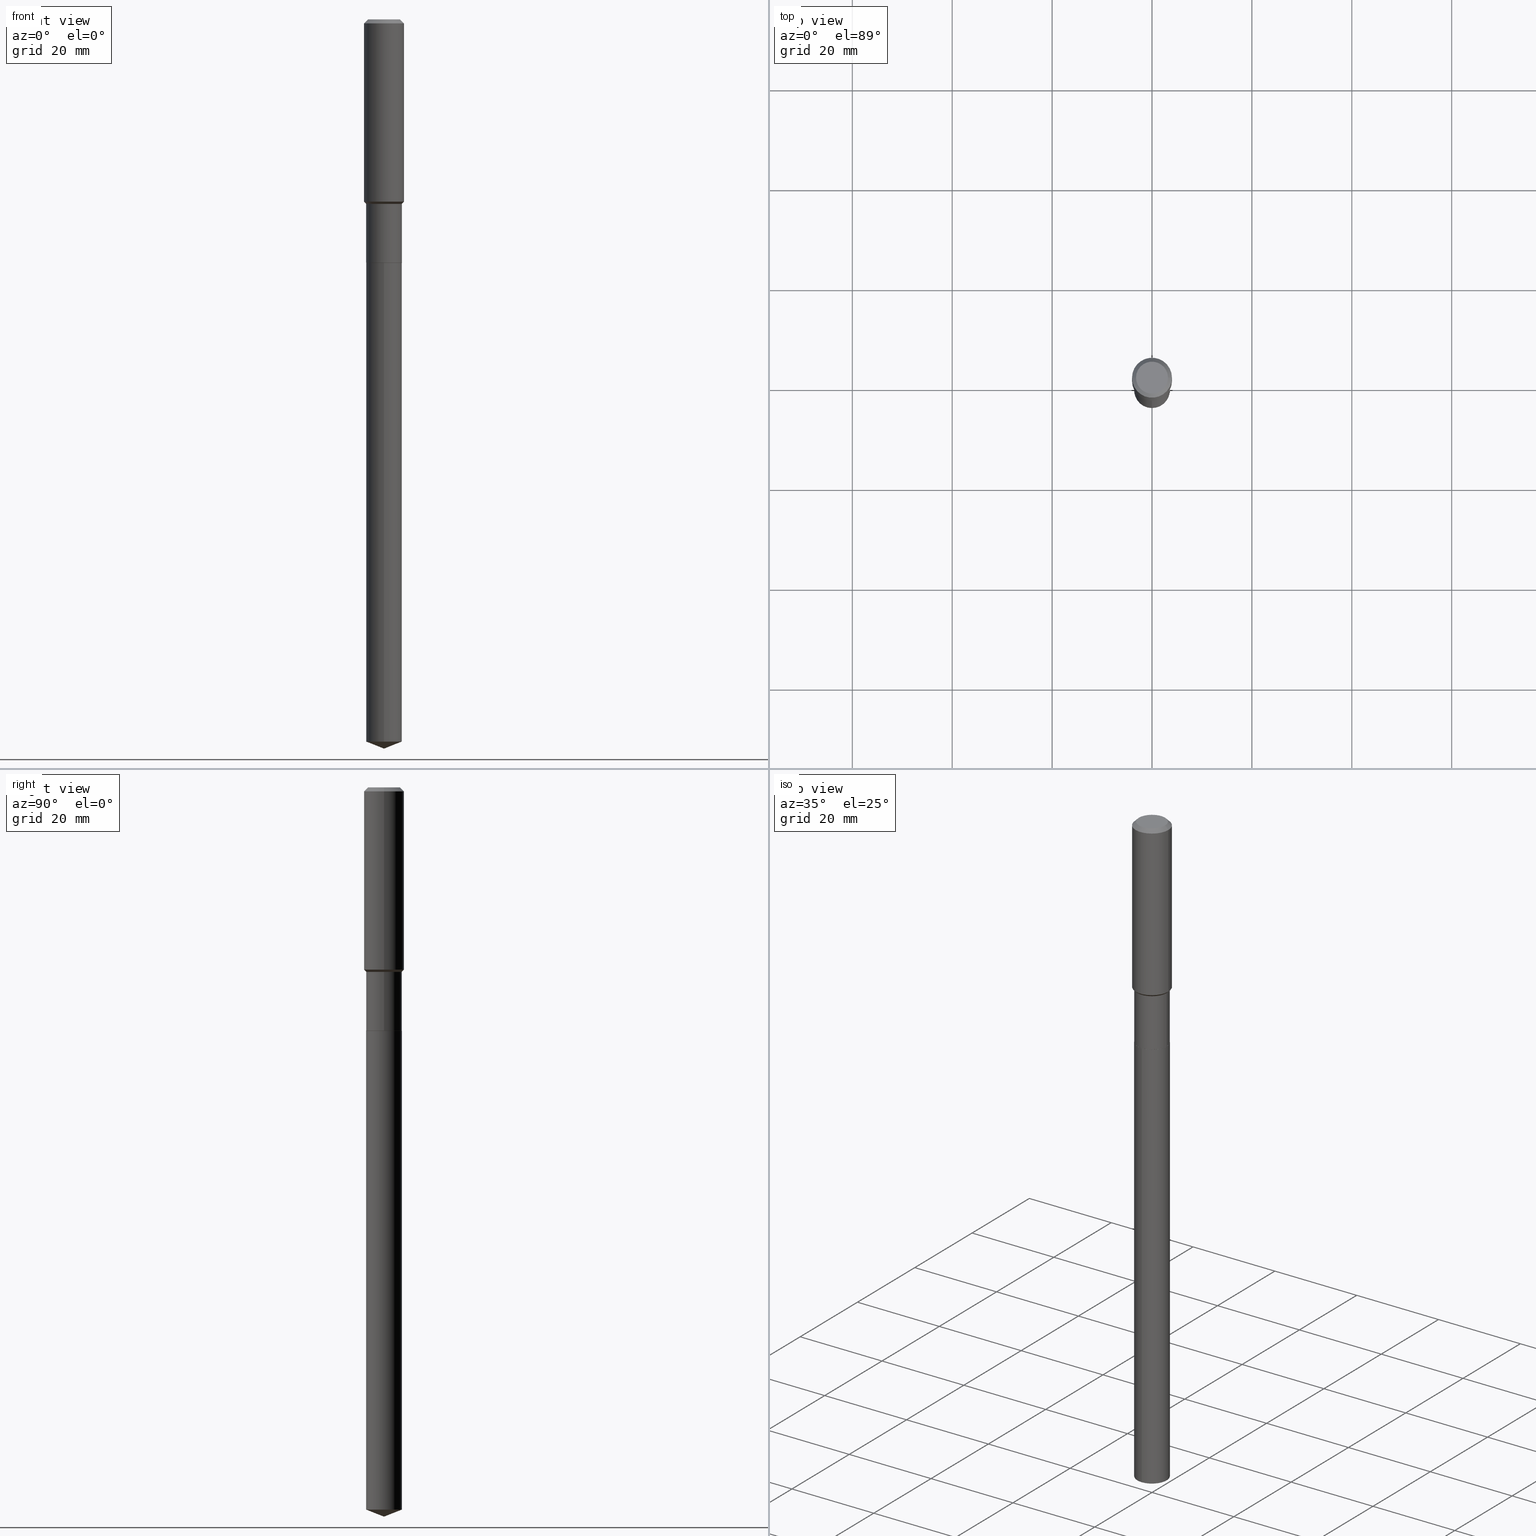
[diagram: canonical four-view strip — front | top / right | iso, engineering-drawing reading convention]
A machine part, canonical four-view strip (front | top / right | iso — engineering-drawing reading convention). The complete STEP part file that produces these views, byte-faithful:
ISO-10303-21;
HEADER;
FILE_DESCRIPTION (( 'STEP AP203' ),
    '1' );
FILE_NAME ('56521.STEP',
    '2024-04-24T18:18:09',
    ( '' ),
    ( '' ),
    'SwSTEP 2.0',
    'SolidWorks 2023',
    '' );
FILE_SCHEMA (( 'CONFIG_CONTROL_DESIGN' ));
ENDSEC;

DATA;
#1 = DATE_AND_TIME ( #347, #340 ) ;
#2 = APPLICATION_PROTOCOL_DEFINITION ( 'international standard', 'config_control_design', 1994, #264 ) ;
#3 = EDGE_CURVE ( 'NONE', #299, #362, #209, .T. ) ;
#4 = ORIENTED_EDGE ( 'NONE', *, *, #311, .F. ) ;
#5 = CC_DESIGN_APPROVAL ( #483, ( #331 ) ) ;
#6 = CALENDAR_DATE ( 2024, 24, 4 ) ;
#7 = DIRECTION ( 'NONE',  ( -2.445468806185136597E-29, 3.491481338843145583E-15, 1.000000000000000000 ) ) ;
#8 = ADVANCED_FACE ( 'NONE', ( #15 ), #143, .F. ) ;
#9 = PERSON_AND_ORGANIZATION ( #332, #256 ) ;
#10 = CARTESIAN_POINT ( 'NONE',  ( 0.1575000000000000011, -1.190510096822576026E-15, -0.03150000000000019451 ) ) ;
#11 = DIRECTION ( 'NONE',  ( -2.445468806185136877E-29, 3.491481338843145188E-15, 1.000000000000000000 ) ) ;
#12 = VECTOR ( 'NONE', #146, 39.37007874015748143 ) ;
#13 = CIRCLE ( 'NONE', #161, 0.1406000000000000028 ) ;
#14 = ADVANCED_FACE ( 'NONE', ( #287 ), #227, .T. ) ;
#15 = FACE_OUTER_BOUND ( 'NONE', #396, .T. ) ;
#16 = VERTEX_POINT ( 'NONE', #53 ) ;
#17 = ORIENTED_EDGE ( 'NONE', *, *, #50, .T. ) ;
#18 = AXIS2_PLACEMENT_3D ( 'NONE', #421, #7, #239 ) ;
#19 = ADVANCED_FACE ( 'NONE', ( #47 ), #241, .T. ) ;
#20 = ORIENTED_EDGE ( 'NONE', *, *, #34, .F. ) ;
#21 = VERTEX_POINT ( 'NONE', #49 ) ;
#22 = VERTEX_POINT ( 'NONE', #100 ) ;
#23 = DIRECTION ( 'NONE',  ( -2.445468806185136597E-29, 3.491481338843145583E-15, 1.000000000000000000 ) ) ;
#24 = CIRCLE ( 'NONE', #373, 0.1405999999999999472 ) ;
#25 = CIRCLE ( 'NONE', #109, 0.1575000000000001676 ) ;
#26 = ORIENTED_EDGE ( 'NONE', *, *, #259, .T. ) ;
#27 = DIRECTION ( 'NONE',  ( 1.000000000000000000, -6.982962677686268288E-15, 0.000000000000000000 ) ) ;
#28 = CYLINDRICAL_SURFACE ( 'NONE', #198, 0.1405999999999999750 ) ;
#29 = APPROVAL_DATE_TIME ( #423, #415 ) ;
#30 = AXIS2_PLACEMENT_3D ( 'NONE', #365, #465, #171 ) ;
#31 = CIRCLE ( 'NONE', #357, 0.1405999999999999472 ) ;
#32 = COORDINATED_UNIVERSAL_TIME_OFFSET ( 5, 0, .BEHIND. ) ;
#33 = CARTESIAN_POINT ( 'NONE',  ( -0.1401000000000000023, -5.698192459793258446E-15, -1.917900000000000382 ) ) ;
#34 = EDGE_CURVE ( 'NONE', #21, #16, #251, .T. ) ;
#35 = ORIENTED_EDGE ( 'NONE', *, *, #93, .F. ) ;
#36 = DIRECTION ( 'NONE',  ( -1.000000000000000000, 6.982962677686265922E-15, 0.000000000000000000 ) ) ;
#37 = CARTESIAN_POINT ( 'NONE',  ( 0.1406000000000000028, -7.676370871580536837E-15, -1.917400000000000437 ) ) ;
#38 = CYLINDRICAL_SURFACE ( 'NONE', #172, 0.1406000000000000028 ) ;
#39 = CIRCLE ( 'NONE', #210, 0.1406000000000000028 ) ;
#40 = LINE ( 'NONE', #10, #470 ) ;
#41 = AXIS2_PLACEMENT_3D ( 'NONE', #195, #119, #419 ) ;
#42 = APPROVAL_STATUS ( 'not_yet_approved' ) ;
#43 = CARTESIAN_POINT ( 'NONE',  ( 0.1575000000000000844, -1.099816621735587677E-15, 7.679978421878603638E-30 ) ) ;
#44 = MANIFOLD_SOLID_BREP ( 'Body-Move/Copy2[2]', #431 ) ;
#45 = DIRECTION ( 'NONE',  ( -6.982962677686265133E-15, -1.000000000000000000, 3.885985766236505386E-15 ) ) ;
#46 = LENGTH_MEASURE_WITH_UNIT ( LENGTH_MEASURE( 0.02539999999999999897 ), #89 );
#47 = FACE_OUTER_BOUND ( 'NONE', #68, .T. ) ;
#48 = CLOSED_SHELL ( 'NONE', ( #446, #19, #408, #393, #173 ) ) ;
#49 = CARTESIAN_POINT ( 'NONE',  ( 0.1575000000000001676, -6.116726157519304807E-15, -1.436900000000000288 ) ) ;
#50 = EDGE_CURVE ( 'NONE', #292, #362, #322, .T. ) ;
#51 = DIRECTION ( 'NONE',  ( 1.000000000000000000, -6.982962677686265922E-15, 4.876281427513067258E-29 ) ) ;
#52 = ORIENTED_EDGE ( 'NONE', *, *, #190, .T. ) ;
#53 = CARTESIAN_POINT ( 'NONE',  ( 0.1575000000000000011, -1.209798283909146741E-15, -0.03150000000000019451 ) ) ;
#54 = VERTEX_POINT ( 'NONE', #468 ) ;
#55 = VECTOR ( 'NONE', #103, 39.37007874015748143 ) ;
#56 = CARTESIAN_POINT ( 'NONE',  ( 7.703226739483228723E-31, -1.099816621735597661E-16, -0.03150000000000019451 ) ) ;
#57 = VECTOR ( 'NONE', #294, 39.37007874015748143 ) ;
#58 = CC_DESIGN_DATE_AND_TIME_ASSIGNMENT ( #80, #203, ( #175 ) ) ;
#59 = DIRECTION ( 'NONE',  ( -0.7071067811865514585, 7.493145998870368360E-15, 0.7071067811865435759 ) ) ;
#60 = EDGE_LOOP ( 'NONE', ( #176, #291, #215, #473 ) ) ;
#61 = DIMENSIONAL_EXPONENTS ( 1.000000000000000000, 0.000000000000000000, 0.000000000000000000, 0.000000000000000000, 0.000000000000000000, 0.000000000000000000, 0.000000000000000000 ) ;
#62 = LINE ( 'NONE', #413, #305 ) ;
#63 = DIRECTION ( 'NONE',  ( 1.000000000000000000, -6.982962677686266711E-15, 4.876176775795935232E-29 ) ) ;
#64 = ORIENTED_EDGE ( 'NONE', *, *, #50, .F. ) ;
#65 = AXIS2_PLACEMENT_3D ( 'NONE', #355, #170, #328 ) ;
#66 = CIRCLE ( 'NONE', #281, 0.1575000000000000011 ) ;
#67 = DIRECTION ( 'NONE',  ( 1.000000000000000000, -6.982962677686268288E-15, 0.000000000000000000 ) ) ;
#68 = EDGE_LOOP ( 'NONE', ( #374, #138, #219 ) ) ;
#69 = DIRECTION ( 'NONE',  ( 0.7071067811865514585, -2.468850131082298081E-15, 0.7071067811865435759 ) ) ;
#70 = DIRECTION ( 'NONE',  ( -2.445468806185136877E-29, 3.491481338843145188E-15, 1.000000000000000000 ) ) ;
#71 = APPROVAL_STATUS ( 'not_yet_approved' ) ;
#72 = AXIS2_PLACEMENT_3D ( 'NONE', #391, #435, #395 ) ;
#73 =( GEOMETRIC_REPRESENTATION_CONTEXT ( 3 ) GLOBAL_UNCERTAINTY_ASSIGNED_CONTEXT ( ( #428 ) ) GLOBAL_UNIT_ASSIGNED_CONTEXT ( ( #467, #128, #83 ) ) REPRESENTATION_CONTEXT ( 'NONE', 'WORKASPACE' ) );
#74 = CARTESIAN_POINT ( 'NONE',  ( -0.1575000000000000011, -1.444340790156479606E-15, -0.03150000000000019451 ) ) ;
#75 = EDGE_CURVE ( 'NONE', #22, #292, #136, .T. ) ;
#76 = PERSON_AND_ORGANIZATION_ROLE ( 'classification_officer' ) ;
#77 = CARTESIAN_POINT ( 'NONE',  ( 1.405709977791097434E-28, -2.006825415014536211E-14, -5.748000000000000220 ) ) ;
#78 = VERTEX_POINT ( 'NONE', #484 ) ;
#79 = ADVANCED_FACE ( 'NONE', ( #402 ), #258, .F. ) ;
#80 = DATE_AND_TIME ( #121, #212 ) ;
#81 = ORIENTED_EDGE ( 'NONE', *, *, #190, .F. ) ;
#82 = ADVANCED_BREP_SHAPE_REPRESENTATION ( '56521', ( #380, #44, #206 ), #73 ) ;
#83 =( NAMED_UNIT ( * ) SI_UNIT ( $, .STERADIAN. ) SOLID_ANGLE_UNIT ( ) );
#84 = VECTOR ( 'NONE', #405, 39.37007874015748854 ) ;
#85 = COORDINATED_UNIVERSAL_TIME_OFFSET ( 5, 0, .BEHIND. ) ;
#86 = CYLINDRICAL_SURFACE ( 'NONE', #454, 0.1406000000000000028 ) ;
#87 = DIRECTION ( 'NONE',  ( 0.7071067811865451302, -7.319954787623248157E-15, -0.7071067811865499042 ) ) ;
#88 = CARTESIAN_POINT ( 'NONE',  ( 4.690164623382474764E-29, -6.696312059767270024E-15, -1.917900000000000382 ) ) ;
#89 =( LENGTH_UNIT ( ) NAMED_UNIT ( * ) SI_UNIT ( $, .METRE. ) );
#90 = CARTESIAN_POINT ( 'NONE',  ( 4.690164623382474764E-29, -6.696312059767270024E-15, -1.917900000000000382 ) ) ;
#91 = VECTOR ( 'NONE', #11, 39.37007874015748143 ) ;
#92 = AXIS2_PLACEMENT_3D ( 'NONE', #274, #236, #191 ) ;
#93 = EDGE_CURVE ( 'NONE', #196, #21, #62, .T. ) ;
#94 = DIRECTION ( 'NONE',  ( 1.000000000000000000, -6.982962677686266711E-15, 4.876176775795935232E-29 ) ) ;
#95 = ORIENTED_EDGE ( 'NONE', *, *, #133, .F. ) ;
#96 = DIRECTION ( 'NONE',  ( -2.445563635683885616E-29, 3.491345537603577277E-15, 1.000000000000000000 ) ) ;
#97 = ORIENTED_EDGE ( 'NONE', *, *, #218, .T. ) ;
#98 = LINE ( 'NONE', #399, #280 ) ;
#99 = FACE_OUTER_BOUND ( 'NONE', #316, .T. ) ;
#100 = CARTESIAN_POINT ( 'NONE',  ( 9.990230864788403121E-16, 0.1405999999999801575, -5.692616187128541227 ) ) ;
#101 = ORIENTED_EDGE ( 'NONE', *, *, #75, .F. ) ;
#102 = LOCAL_TIME ( 14, 18, 9.000000000000000000, #279 ) ;
#103 = DIRECTION ( 'NONE',  ( -0.7071067811865451302, 2.468850131082231817E-15, -0.7071067811865499042 ) ) ;
#104 = CARTESIAN_POINT ( 'NONE',  ( -9.818045524826419714E-16, -0.1406000000000066918, -1.917899999999999716 ) ) ;
#105 = CARTESIAN_POINT ( 'NONE',  ( 3.555222550431952011E-29, -5.075915570410165725E-15, -1.453800000000000203 ) ) ;
#106 = EDGE_LOOP ( 'NONE', ( #436, #17 ) ) ;
#107 = CARTESIAN_POINT ( 'NONE',  ( -0.1406000000000000028, -4.886217858275305847E-15, -1.917400000000000437 ) ) ;
#108 = AXIS2_PLACEMENT_3D ( 'NONE', #90, #139, #430 ) ;
#109 = AXIS2_PLACEMENT_3D ( 'NONE', #372, #300, #262 ) ;
#110 = DIRECTION ( 'NONE',  ( -1.000000000000000000, 6.982962677686265922E-15, -4.876176775795935793E-29 ) ) ;
#111 = ADVANCED_FACE ( 'NONE', ( #485 ), #28, .T. ) ;
#112 = DATE_AND_TIME ( #6, #102 ) ;
#113 = DIRECTION ( 'NONE',  ( 1.000000000000000000, -6.982962677686265133E-15, 0.000000000000000000 ) ) ;
#114 = CARTESIAN_POINT ( 'NONE',  ( -0.1401000000000000023, -5.700841686967369647E-15, -1.917900000000000382 ) ) ;
#115 = DIRECTION ( 'NONE',  ( 1.000000000000000000, -6.982962677686265922E-15, 0.000000000000000000 ) ) ;
#116 = SECURITY_CLASSIFICATION_LEVEL ( 'unclassified' ) ;
#117 = AXIS2_PLACEMENT_3D ( 'NONE', #392, #290, #130 ) ;
#118 = VECTOR ( 'NONE', #231, 39.37007874015748143 ) ;
#119 = DIRECTION ( 'NONE',  ( -2.445563635683885616E-29, 3.491345537603577277E-15, 1.000000000000000000 ) ) ;
#120 = ORIENTED_EDGE ( 'NONE', *, *, #153, .F. ) ;
#121 = CALENDAR_DATE ( 2024, 24, 4 ) ;
#122 = DIRECTION ( 'NONE',  ( -2.445468806185136597E-29, 3.491481338843145583E-15, 1.000000000000000000 ) ) ;
#123 = COORDINATED_UNIVERSAL_TIME_OFFSET ( 5, 0, .BEHIND. ) ;
#124 = EDGE_CURVE ( 'NONE', #211, #476, #339, .T. ) ;
#125 = CYLINDRICAL_SURFACE ( 'NONE', #471, 0.1575000000000000844 ) ;
#126 = DIRECTION ( 'NONE',  ( -2.445468806185136597E-29, 3.491481338843145583E-15, 1.000000000000000000 ) ) ;
#127 = APPLICATION_CONTEXT ( 'configuration controlled 3d designs of mechanical parts and assemblies' ) ;
#128 =( NAMED_UNIT ( * ) PLANE_ANGLE_UNIT ( ) SI_UNIT ( $, .RADIAN. ) );
#129 = CIRCLE ( 'NONE', #463, 0.1401000000000000023 ) ;
#130 = DIRECTION ( 'NONE',  ( 1.000000000000000000, -6.982962677686265922E-15, 4.876281427513067258E-29 ) ) ;
#131 = PRODUCT_DEFINITION ( 'UNKNOWN', '', #331, #202 ) ;
#132 = CARTESIAN_POINT ( 'NONE',  ( 3.555222550431952011E-29, -5.075915570410165725E-15, -1.453800000000000203 ) ) ;
#133 = EDGE_CURVE ( 'NONE', #411, #22, #443, .T. ) ;
#134 = ORIENTED_EDGE ( 'NONE', *, *, #329, .F. ) ;
#135 = CYLINDRICAL_SURFACE ( 'NONE', #314, 0.1405999999999999750 ) ;
#136 = LINE ( 'NONE', #223, #12 ) ;
#137 = DIRECTION ( 'NONE',  ( 2.445468806185136597E-29, -3.491481338843145583E-15, -1.000000000000000000 ) ) ;
#138 = ORIENTED_EDGE ( 'NONE', *, *, #133, .T. ) ;
#139 = DIRECTION ( 'NONE',  ( -2.438088387897960049E-29, 3.491481338843145188E-15, 1.000000000000000000 ) ) ;
#140 = CC_DESIGN_PERSON_AND_ORGANIZATION_ASSIGNMENT ( #379, #456, ( #331 ) ) ;
#141 = ORIENTED_EDGE ( 'NONE', *, *, #286, .T. ) ;
#142 = ORIENTED_EDGE ( 'NONE', *, *, #34, .T. ) ;
#143 = PLANE ( 'NONE',  #108 ) ;
#144 = ORIENTED_EDGE ( 'NONE', *, *, #412, .T. ) ;
#145 = CARTESIAN_POINT ( 'NONE',  ( 1.405673603091967270E-28, -2.006877505654009668E-14, -5.748000000000000220 ) ) ;
#146 = DIRECTION ( 'NONE',  ( -2.445563635683885616E-29, 3.491345537603577277E-15, 1.000000000000000000 ) ) ;
#147 = EDGE_LOOP ( 'NONE', ( #367, #144 ) ) ;
#148 = AXIS2_PLACEMENT_3D ( 'NONE', #325, #462, #353 ) ;
#149 = AXIS2_PLACEMENT_3D ( 'NONE', #162, #122, #158 ) ;
#150 = CARTESIAN_POINT ( 'NONE',  ( -0.1575000000000000844, 1.119104808822158392E-15, -7.747322767151481189E-30 ) ) ;
#151 = DIRECTION ( 'NONE',  ( -2.445468806185136597E-29, 3.491481338843145583E-15, 1.000000000000000000 ) ) ;
#152 = FACE_OUTER_BOUND ( 'NONE', #469, .T. ) ;
#153 = EDGE_CURVE ( 'NONE', #22, #299, #400, .T. ) ;
#154 = CIRCLE ( 'NONE', #117, 0.1260000000000000009 ) ;
#155 = CC_DESIGN_PERSON_AND_ORGANIZATION_ASSIGNMENT ( #160, #313, ( #331 ) ) ;
#156 = LINE ( 'NONE', #114, #118 ) ;
#157 = DIRECTION ( 'NONE',  ( -2.445468806185136597E-29, 3.491481338843145583E-15, 1.000000000000000000 ) ) ;
#158 = DIRECTION ( 'NONE',  ( 1.000000000000000000, -6.982962677686269077E-15, 0.000000000000000000 ) ) ;
#159 = EDGE_LOOP ( 'NONE', ( #252, #288, #4, #220 ) ) ;
#160 = PERSON_AND_ORGANIZATION ( #332, #256 ) ;
#161 = AXIS2_PLACEMENT_3D ( 'NONE', #189, #307, #113 ) ;
#162 = CARTESIAN_POINT ( 'NONE',  ( 4.690164623382474764E-29, -6.696312059767270024E-15, -1.917900000000000382 ) ) ;
#163 = ORIENTED_EDGE ( 'NONE', *, *, #124, .T. ) ;
#164 = PERSON_AND_ORGANIZATION ( #332, #256 ) ;
#165 = DIRECTION ( 'NONE',  ( -2.445563635683885616E-29, 3.491345537603577277E-15, 1.000000000000000000 ) ) ;
#166 = CARTESIAN_POINT ( 'NONE',  ( 1.392147326565136221E-28, -1.987515057541849014E-14, -5.692616187128541227 ) ) ;
#167 = EDGE_CURVE ( 'NONE', #54, #16, #40, .T. ) ;
#168 = AXIS2_PLACEMENT_3D ( 'NONE', #343, #410, #487 ) ;
#169 = CARTESIAN_POINT ( 'NONE',  ( 0.000000000000000000, 0.000000000000000000, 0.000000000000000000 ) ) ;
#170 = DIRECTION ( 'NONE',  ( -2.445563635683885616E-29, 3.491345537603577277E-15, 1.000000000000000000 ) ) ;
#171 = DIRECTION ( 'NONE',  ( -6.982962677686265133E-15, -1.000000000000000000, 0.000000000000000000 ) ) ;
#172 = AXIS2_PLACEMENT_3D ( 'NONE', #489, #165, #318 ) ;
#173 = ADVANCED_FACE ( 'NONE', ( #201 ), #321, .F. ) ;
#174 = EDGE_CURVE ( 'NONE', #338, #54, #154, .T. ) ;
#175 = SECURITY_CLASSIFICATION ( '', '', #116 ) ;
#176 = ORIENTED_EDGE ( 'NONE', *, *, #200, .F. ) ;
#177 = ORIENTED_EDGE ( 'NONE', *, *, #167, .T. ) ;
#178 = CARTESIAN_POINT ( 'NONE',  ( 0.1405999999999999750, -9.818045524826889086E-16, 6.855904546769083471E-30 ) ) ;
#179 = EDGE_LOOP ( 'NONE', ( #337, #330, #453, #261 ) ) ;
#180 = EDGE_LOOP ( 'NONE', ( #254, #441, #142, #406 ) ) ;
#181 = AXIS2_PLACEMENT_3D ( 'NONE', #263, #376, #378 ) ;
#182 = EDGE_CURVE ( 'NONE', #479, #312, #438, .T. ) ;
#183 = EDGE_LOOP ( 'NONE', ( #26, #141, #403, #444 ) ) ;
#184 = EDGE_CURVE ( 'NONE', #299, #22, #39, .T. ) ;
#185 = DIRECTION ( 'NONE',  ( 1.000000000000000000, -6.982962677686267499E-15, 0.000000000000000000 ) ) ;
#186 = CC_DESIGN_PERSON_AND_ORGANIZATION_ASSIGNMENT ( #237, #187, ( #131 ) ) ;
#187 = PERSON_AND_ORGANIZATION_ROLE ( 'creator' ) ;
#188 = CIRCLE ( 'NONE', #296, 0.1575000000000001676 ) ;
#189 = CARTESIAN_POINT ( 'NONE',  ( 4.688941888979381963E-29, -6.694566319097848520E-15, -1.917400000000000437 ) ) ;
#190 = EDGE_CURVE ( 'NONE', #196, #78, #24, .T. ) ;
#191 = DIRECTION ( 'NONE',  ( -6.982962677686265133E-15, -1.000000000000000000, 3.885985766236505386E-15 ) ) ;
#192 = ORIENTED_EDGE ( 'NONE', *, *, #174, .F. ) ;
#193 = CARTESIAN_POINT ( 'NONE',  ( 7.703226739483228723E-31, -1.099816621735597661E-16, -0.03150000000000019451 ) ) ;
#194 = CARTESIAN_POINT ( 'NONE',  ( 0.000000000000000000, 0.000000000000000000, 0.000000000000000000 ) ) ;
#195 = CARTESIAN_POINT ( 'NONE',  ( -8.222511499652505250E-28, 1.173860341212075691E-13, 33.62207874015748388 ) ) ;
#196 = VERTEX_POINT ( 'NONE', #358 ) ;
#197 = MECHANICAL_CONTEXT ( 'NONE', #264, 'mechanical' ) ;
#198 = AXIS2_PLACEMENT_3D ( 'NONE', #371, #23, #63 ) ;
#199 = CIRCLE ( 'NONE', #168, 0.1401000000000000023 ) ;
#200 = EDGE_CURVE ( 'NONE', #78, #211, #98, .T. ) ;
#201 = FACE_OUTER_BOUND ( 'NONE', #106, .T. ) ;
#202 = DESIGN_CONTEXT ( 'detailed design', #127, 'design' ) ;
#203 = DATE_TIME_ROLE ( 'classification_date' ) ;
#204 = EDGE_CURVE ( 'NONE', #338, #476, #368, .T. ) ;
#205 = PRODUCT_RELATED_PRODUCT_CATEGORY ( 'detail', '', ( #310 ) ) ;
#206 = AXIS2_PLACEMENT_3D ( 'NONE', #194, #349, #270 ) ;
#207 = CARTESIAN_POINT ( 'NONE',  ( 0.1401000000000000023, -7.674625130911116123E-15, -1.917900000000000382 ) ) ;
#208 = ORIENTED_EDGE ( 'NONE', *, *, #412, .F. ) ;
#209 = LINE ( 'NONE', #466, #409 ) ;
#210 = AXIS2_PLACEMENT_3D ( 'NONE', #166, #319, #242 ) ;
#211 = VERTEX_POINT ( 'NONE', #439 ) ;
#212 = LOCAL_TIME ( 14, 18, 9.000000000000000000, #85 ) ;
#213 = CARTESIAN_POINT ( 'NONE',  ( -0.1260000000000000009, 9.348441284752484904E-16, 3.860086710906114178E-18 ) ) ;
#214 = CARTESIAN_POINT ( 'NONE',  ( 7.703226739483228723E-31, -1.099816621735597661E-16, -0.03150000000000019451 ) ) ;
#215 = ORIENTED_EDGE ( 'NONE', *, *, #93, .T. ) ;
#216 = ORIENTED_EDGE ( 'NONE', *, *, #167, .F. ) ;
#217 = CARTESIAN_POINT ( 'NONE',  ( 3.513894127607423393E-29, -5.016909535783716538E-15, -1.436900000000000288 ) ) ;
#218 = EDGE_CURVE ( 'NONE', #411, #299, #478, .T. ) ;
#219 = ORIENTED_EDGE ( 'NONE', *, *, #184, .F. ) ;
#220 = ORIENTED_EDGE ( 'NONE', *, *, #3, .F. ) ;
#221 = LOCAL_TIME ( 14, 18, 9.000000000000000000, #309 ) ;
#222 = EDGE_CURVE ( 'NONE', #301, #479, #129, .T. ) ;
#223 = CARTESIAN_POINT ( 'NONE',  ( 9.990230864787476209E-16, 0.1405999999999933137, -1.917900000000000826 ) ) ;
#224 = DIRECTION ( 'NONE',  ( -2.445468806185136597E-29, 3.491481338843145583E-15, 1.000000000000000000 ) ) ;
#225 = ORIENTED_EDGE ( 'NONE', *, *, #243, .F. ) ;
#226 = DIRECTION ( 'NONE',  ( -2.445468806185136597E-29, 3.491481338843145583E-15, 1.000000000000000000 ) ) ;
#227 = CONICAL_SURFACE ( 'NONE', #72, 0.1405999999999999472, 0.7853981633974538301 ) ;
#228 = APPROVAL_ROLE ( '' ) ;
#229 = CONICAL_SURFACE ( 'NONE', #41, 99.94676754584200751, 1.195550537616126396 ) ;
#230 = PRODUCT_DEFINITION_SHAPE ( 'NONE', 'NONE',  #131 ) ;
#231 = DIRECTION ( 'NONE',  ( -0.7071067811866199593, 7.493145998870616062E-15, 0.7071067811864750752 ) ) ;
#232 = SHAPE_DEFINITION_REPRESENTATION ( #230, #82 ) ;
#233 = CARTESIAN_POINT ( 'NONE',  ( -9.439721640706201686E-47, 1.347742071746726764E-32, 3.860086710912459732E-18 ) ) ;
#234 = ORIENTED_EDGE ( 'NONE', *, *, #3, .T. ) ;
#235 = DIRECTION ( 'NONE',  ( -2.445468806185136597E-29, 3.491481338843145583E-15, 1.000000000000000000 ) ) ;
#236 = DIRECTION ( 'NONE',  ( -2.445563635683885616E-29, 3.491345537603577277E-15, 1.000000000000000000 ) ) ;
#237 = PERSON_AND_ORGANIZATION ( #332, #256 ) ;
#238 = EDGE_CURVE ( 'NONE', #326, #312, #418, .T. ) ;
#239 = DIRECTION ( 'NONE',  ( 1.000000000000000000, -6.982962677686269077E-15, 0.000000000000000000 ) ) ;
#240 = ORIENTED_EDGE ( 'NONE', *, *, #344, .F. ) ;
#241 = CONICAL_SURFACE ( 'NONE', #269, 99.94676754584200751, 1.195550537616126396 ) ;
#242 = DIRECTION ( 'NONE',  ( -6.982962677686265133E-15, -1.000000000000000000, 0.000000000000000000 ) ) ;
#243 = EDGE_CURVE ( 'NONE', #326, #78, #414, .T. ) ;
#244 = ADVANCED_FACE ( 'NONE', ( #152 ), #382, .T. ) ;
#245 = VECTOR ( 'NONE', #298, 39.37007874015748143 ) ;
#246 = AXIS2_PLACEMENT_3D ( 'NONE', #233, #364, #51 ) ;
#247 = ORIENTED_EDGE ( 'NONE', *, *, #243, .T. ) ;
#248 = ORIENTED_EDGE ( 'NONE', *, *, #344, .T. ) ;
#249 = ADVANCED_FACE ( 'NONE', ( #304 ), #448, .T. ) ;
#250 = DIRECTION ( 'NONE',  ( 0.7071067811866199593, -2.468850131083015945E-15, 0.7071067811864750752 ) ) ;
#251 = LINE ( 'NONE', #43, #91 ) ;
#252 = ORIENTED_EDGE ( 'NONE', *, *, #184, .T. ) ;
#253 = VECTOR ( 'NONE', #70, 39.37007874015748143 ) ;
#254 = ORIENTED_EDGE ( 'NONE', *, *, #124, .F. ) ;
#255 = EDGE_LOOP ( 'NONE', ( #225, #370, #277, #308 ) ) ;
#256 = ORGANIZATION ( 'UNSPECIFIED', 'UNSPECIFIED', '' ) ;
#257 = CC_DESIGN_PERSON_AND_ORGANIZATION_ASSIGNMENT ( #425, #76, ( #175 ) ) ;
#258 = PLANE ( 'NONE',  #451 ) ;
#259 = EDGE_CURVE ( 'NONE', #479, #301, #199, .T. ) ;
#260 = CARTESIAN_POINT ( 'NONE',  ( 1.405710296754271834E-28, -2.006825415014536211E-14, -5.748000000000000220 ) ) ;
#261 = ORIENTED_EDGE ( 'NONE', *, *, #238, .F. ) ;
#262 = DIRECTION ( 'NONE',  ( 1.000000000000000000, -6.982962677686267499E-15, 0.000000000000000000 ) ) ;
#263 = CARTESIAN_POINT ( 'NONE',  ( 0.000000000000000000, 0.000000000000000000, 0.000000000000000000 ) ) ;
#264 = APPLICATION_CONTEXT ( 'configuration controlled 3d designs of mechanical parts and assemblies' ) ;
#265 = AXIS2_PLACEMENT_3D ( 'NONE', #193, #157, #115 ) ;
#266 = FACE_OUTER_BOUND ( 'NONE', #422, .T. ) ;
#267 = CARTESIAN_POINT ( 'NONE',  ( -9.818045524825498719E-16, -0.1406000000000198757, -5.692616187128541227 ) ) ;
#268 = APPROVAL_ROLE ( '' ) ;
#269 = AXIS2_PLACEMENT_3D ( 'NONE', #284, #96, #474 ) ;
#270 = DIRECTION ( 'NONE',  ( 1.000000000000000000, 0.000000000000000000, 0.000000000000000000 ) ) ;
#271 = CC_DESIGN_APPROVAL ( #415, ( #175 ) ) ;
#272 = DIRECTION ( 'NONE',  ( -2.445563635683885616E-29, 3.491345537603577277E-15, 1.000000000000000000 ) ) ;
#273 = ADVANCED_FACE ( 'NONE', ( #266 ), #401, .T. ) ;
#274 = CARTESIAN_POINT ( 'NONE',  ( 4.690164623382474764E-29, -6.696312059767270024E-15, -1.917900000000000382 ) ) ;
#275 = PERSON_AND_ORGANIZATION ( #332, #256 ) ;
#276 = FACE_OUTER_BOUND ( 'NONE', #183, .T. ) ;
#277 = ORIENTED_EDGE ( 'NONE', *, *, #360, .T. ) ;
#278 = DATE_AND_TIME ( #460, #221 ) ;
#279 = COORDINATED_UNIVERSAL_TIME_OFFSET ( 5, 0, .BEHIND. ) ;
#280 = VECTOR ( 'NONE', #59, 39.37007874015748143 ) ;
#281 = AXIS2_PLACEMENT_3D ( 'NONE', #56, #442, #302 ) ;
#282 = APPROVAL_PERSON_ORGANIZATION ( #275, #415, #268 ) ;
#283 = CARTESIAN_POINT ( 'NONE',  ( 0.000000000000000000, 0.000000000000000000, 0.000000000000000000 ) ) ;
#284 = CARTESIAN_POINT ( 'NONE',  ( -8.222511499652505250E-28, 1.173860341212075691E-13, 33.62207874015748388 ) ) ;
#285 = ORIENTED_EDGE ( 'NONE', *, *, #153, .T. ) ;
#286 = EDGE_CURVE ( 'NONE', #301, #326, #156, .T. ) ;
#287 = FACE_OUTER_BOUND ( 'NONE', #60, .T. ) ;
#288 = ORIENTED_EDGE ( 'NONE', *, *, #75, .T. ) ;
#289 = EDGE_CURVE ( 'NONE', #476, #16, #449, .T. ) ;
#290 = DIRECTION ( 'NONE',  ( -2.445468806185136597E-29, 3.491481338843145583E-15, 1.000000000000000000 ) ) ;
#291 = ORIENTED_EDGE ( 'NONE', *, *, #363, .T. ) ;
#292 = VERTEX_POINT ( 'NONE', #385 ) ;
#293 = APPROVAL ( #42, 'UNSPECIFIED' ) ;
#294 = DIRECTION ( 'NONE',  ( -2.445468806185136877E-29, 3.491481338843145188E-15, 1.000000000000000000 ) ) ;
#295 = DIRECTION ( 'NONE',  ( -6.497071151882138769E-15, -0.9304175679820272382, 0.3665012267242906963 ) ) ;
#296 = AXIS2_PLACEMENT_3D ( 'NONE', #217, #151, #185 ) ;
#297 = ORIENTED_EDGE ( 'NONE', *, *, #329, .T. ) ;
#298 = DIRECTION ( 'NONE',  ( -2.445468806185136877E-29, 3.491481338843145188E-15, 1.000000000000000000 ) ) ;
#299 = VERTEX_POINT ( 'NONE', #267 ) ;
#300 = DIRECTION ( 'NONE',  ( -2.445468806185136597E-29, 3.491481338843145583E-15, 1.000000000000000000 ) ) ;
#301 = VERTEX_POINT ( 'NONE', #33 ) ;
#302 = DIRECTION ( 'NONE',  ( 1.000000000000000000, -6.982962677686265922E-15, 0.000000000000000000 ) ) ;
#303 = CARTESIAN_POINT ( 'NONE',  ( -4.719860820353100843E-47, 6.738710358733633822E-33, 1.930043355456229866E-18 ) ) ;
#304 = FACE_OUTER_BOUND ( 'NONE', #180, .T. ) ;
#305 = VECTOR ( 'NONE', #69, 39.37007874015748143 ) ;
#306 = DIRECTION ( 'NONE',  ( 1.000000000000000000, -6.982962677686269077E-15, 0.000000000000000000 ) ) ;
#307 = DIRECTION ( 'NONE',  ( -2.445468806185136597E-29, 3.491481338843145583E-15, 1.000000000000000000 ) ) ;
#308 = ORIENTED_EDGE ( 'NONE', *, *, #363, .F. ) ;
#309 = COORDINATED_UNIVERSAL_TIME_OFFSET ( 5, 0, .BEHIND. ) ;
#310 = PRODUCT ( '56521', '56521', '', ( #197 ) ) ;
#311 = EDGE_CURVE ( 'NONE', #362, #292, #346, .T. ) ;
#312 = VERTEX_POINT ( 'NONE', #37 ) ;
#313 = PERSON_AND_ORGANIZATION_ROLE ( 'design_supplier' ) ;
#314 = AXIS2_PLACEMENT_3D ( 'NONE', #283, #433, #94 ) ;
#315 = FACE_OUTER_BOUND ( 'NONE', #179, .T. ) ;
#316 = EDGE_LOOP ( 'NONE', ( #216, #192, #475, #350 ) ) ;
#317 = APPROVAL_DATE_TIME ( #278, #483 ) ;
#318 = DIRECTION ( 'NONE',  ( -6.982962677686265133E-15, -1.000000000000000000, 3.885985766236505386E-15 ) ) ;
#319 = DIRECTION ( 'NONE',  ( -2.445563635683885616E-29, 3.491345537603577277E-15, 1.000000000000000000 ) ) ;
#320 = DATE_TIME_ROLE ( 'creation_date' ) ;
#321 = PLANE ( 'NONE',  #148 ) ;
#322 = CIRCLE ( 'NONE', #65, 0.1406000000000000028 ) ;
#323 = APPROVAL_PERSON_ORGANIZATION ( #389, #293, #416 ) ;
#324 = DIRECTION ( 'NONE',  ( 1.000000000000000000, -6.982962677686267499E-15, 4.876176775795936353E-29 ) ) ;
#325 = CARTESIAN_POINT ( 'NONE',  ( 4.690164623382474764E-29, -6.696312059767270024E-15, -1.917900000000000382 ) ) ;
#326 = VERTEX_POINT ( 'NONE', #107 ) ;
#327 = DIRECTION ( 'NONE',  ( -1.000000000000000000, 6.982962677686265922E-15, 0.000000000000000000 ) ) ;
#328 = DIRECTION ( 'NONE',  ( -6.982962677686265133E-15, -1.000000000000000000, 3.885985766236505386E-15 ) ) ;
#329 = EDGE_CURVE ( 'NONE', #21, #211, #188, .T. ) ;
#330 = ORIENTED_EDGE ( 'NONE', *, *, #222, .T. ) ;
#331 = PRODUCT_DEFINITION_FORMATION_WITH_SPECIFIED_SOURCE ( 'ANY', '', #310, .NOT_KNOWN. ) ;
#332 = PERSON ( 'UNSPECIFIED', 'UNSPECIFIED', 'UNSPECIFIED', ('UNSPECIFIED'), ('UNSPECIFIED'), ('UNSPECIFIED') ) ;
#333 = CC_DESIGN_DATE_AND_TIME_ASSIGNMENT ( #1, #320, ( #131 ) ) ;
#334 = ORIENTED_EDGE ( 'NONE', *, *, #204, .F. ) ;
#335 = EDGE_LOOP ( 'NONE', ( #490, #247, #81, #398 ) ) ;
#336 = CARTESIAN_POINT ( 'NONE',  ( -0.1575000000000000011, 9.898349595620272334E-16, -0.03150000000000019451 ) ) ;
#337 = ORIENTED_EDGE ( 'NONE', *, *, #286, .F. ) ;
#338 = VERTEX_POINT ( 'NONE', #213 ) ;
#339 = LINE ( 'NONE', #150, #245 ) ;
#340 = LOCAL_TIME ( 14, 18, 9.000000000000000000, #32 ) ;
#341 = ORIENTED_EDGE ( 'NONE', *, *, #259, .F. ) ;
#342 = CARTESIAN_POINT ( 'NONE',  ( -0.1405999999999999750, 9.990230864787006837E-16, -6.916022736898396338E-30 ) ) ;
#343 = CARTESIAN_POINT ( 'NONE',  ( 4.690164623382474764E-29, -6.696312059767270024E-15, -1.917900000000000382 ) ) ;
#344 = EDGE_CURVE ( 'NONE', #16, #476, #66, .T. ) ;
#345 = VECTOR ( 'NONE', #295, 39.37007874015747433 ) ;
#346 = CIRCLE ( 'NONE', #92, 0.1406000000000000028 ) ;
#347 = CALENDAR_DATE ( 2024, 24, 4 ) ;
#348 = EDGE_CURVE ( 'NONE', #211, #21, #25, .T. ) ;
#349 = DIRECTION ( 'NONE',  ( 0.000000000000000000, 0.000000000000000000, 1.000000000000000000 ) ) ;
#350 = ORIENTED_EDGE ( 'NONE', *, *, #289, .T. ) ;
#351 = APPLICATION_PROTOCOL_DEFINITION ( 'international standard', 'config_control_design', 1994, #127 ) ;
#352 = CIRCLE ( 'NONE', #246, 0.1260000000000000009 ) ;
#353 = DIRECTION ( 'NONE',  ( 6.982962677686265922E-15, 1.000000000000000000, -3.491345537603577277E-15 ) ) ;
#354 = DIRECTION ( 'NONE',  ( -2.445468806185136597E-29, 3.491481338843145583E-15, 1.000000000000000000 ) ) ;
#355 = CARTESIAN_POINT ( 'NONE',  ( 4.690164623382474764E-29, -6.696312059767270024E-15, -1.917900000000000382 ) ) ;
#356 = CC_DESIGN_PERSON_AND_ORGANIZATION_ASSIGNMENT ( #164, #387, ( #310 ) ) ;
#357 = AXIS2_PLACEMENT_3D ( 'NONE', #407, #375, #27 ) ;
#358 = CARTESIAN_POINT ( 'NONE',  ( 0.1405999999999999472, -6.057720122892854042E-15, -1.453800000000000203 ) ) ;
#359 = CARTESIAN_POINT ( 'NONE',  ( 4.690164623382474764E-29, -6.696312059767270024E-15, -1.917900000000000382 ) ) ;
#360 = EDGE_CURVE ( 'NONE', #312, #196, #477, .T. ) ;
#361 = FACE_OUTER_BOUND ( 'NONE', #255, .T. ) ;
#362 = VERTEX_POINT ( 'NONE', #104 ) ;
#363 = EDGE_CURVE ( 'NONE', #78, #196, #31, .T. ) ;
#364 = DIRECTION ( 'NONE',  ( -2.445468806185136597E-29, 3.491481338843145583E-15, 1.000000000000000000 ) ) ;
#365 = CARTESIAN_POINT ( 'NONE',  ( 1.392147326565136221E-28, -1.987515057541849014E-14, -5.692616187128541227 ) ) ;
#366 = AXIS2_PLACEMENT_3D ( 'NONE', #386, #137, #36 ) ;
#367 = ORIENTED_EDGE ( 'NONE', *, *, #174, .T. ) ;
#368 = LINE ( 'NONE', #336, #55 ) ;
#369 = EDGE_LOOP ( 'NONE', ( #297, #163, #240, #20 ) ) ;
#370 = ORIENTED_EDGE ( 'NONE', *, *, #238, .T. ) ;
#371 = CARTESIAN_POINT ( 'NONE',  ( 0.000000000000000000, 0.000000000000000000, 0.000000000000000000 ) ) ;
#372 = CARTESIAN_POINT ( 'NONE',  ( 3.513894127607423393E-29, -5.016909535783716538E-15, -1.436900000000000288 ) ) ;
#373 = AXIS2_PLACEMENT_3D ( 'NONE', #132, #126, #390 ) ;
#374 = ORIENTED_EDGE ( 'NONE', *, *, #218, .F. ) ;
#375 = DIRECTION ( 'NONE',  ( -2.445468806185136597E-29, 3.491481338843145583E-15, 1.000000000000000000 ) ) ;
#376 = DIRECTION ( 'NONE',  ( -2.445468806185136597E-29, 3.491481338843145583E-15, 1.000000000000000000 ) ) ;
#377 = ADVANCED_FACE ( 'NONE', ( #461 ), #125, .T. ) ;
#378 = DIRECTION ( 'NONE',  ( 1.000000000000000000, -6.982962677686267499E-15, 4.876176775795936353E-29 ) ) ;
#379 = PERSON_AND_ORGANIZATION ( #332, #256 ) ;
#380 = MANIFOLD_SOLID_BREP ( 'Body-Move/Copy2[1]', #48 ) ;
#381 = DIRECTION ( 'NONE',  ( 1.000000000000000000, -6.982962677686265133E-15, 0.000000000000000000 ) ) ;
#382 = CONICAL_SURFACE ( 'NONE', #440, 0.1405999999999999472, 0.7853981633974538301 ) ;
#383 = AXIS2_PLACEMENT_3D ( 'NONE', #214, #472, #327 ) ;
#384 = CC_DESIGN_SECURITY_CLASSIFICATION ( #175, ( #331 ) ) ;
#385 = CARTESIAN_POINT ( 'NONE',  ( 9.990230864788405093E-16, 0.1405999999999933137, -1.917900000000000826 ) ) ;
#386 = CARTESIAN_POINT ( 'NONE',  ( 7.703226739483228723E-31, -1.099816621735597661E-16, -0.03150000000000019451 ) ) ;
#387 = PERSON_AND_ORGANIZATION_ROLE ( 'design_owner' ) ;
#388 = FACE_OUTER_BOUND ( 'NONE', #159, .T. ) ;
#389 = PERSON_AND_ORGANIZATION ( #332, #256 ) ;
#390 = DIRECTION ( 'NONE',  ( 1.000000000000000000, -6.982962677686268288E-15, 0.000000000000000000 ) ) ;
#391 = CARTESIAN_POINT ( 'NONE',  ( 3.555222550431952011E-29, -5.075915570410165725E-15, -1.453800000000000203 ) ) ;
#392 = CARTESIAN_POINT ( 'NONE',  ( -9.439721640706201686E-47, 1.347742071746726764E-32, 3.860086710912459732E-18 ) ) ;
#393 = ADVANCED_FACE ( 'NONE', ( #424 ), #86, .T. ) ;
#394 = CONICAL_SURFACE ( 'NONE', #18, 0.1401000000000000023, 0.7853981633975507526 ) ;
#395 = DIRECTION ( 'NONE',  ( 1.000000000000000000, -6.982962677686268288E-15, 0.000000000000000000 ) ) ;
#396 = EDGE_LOOP ( 'NONE', ( #341, #437 ) ) ;
#397 = DIRECTION ( 'NONE',  ( -2.445563635683885616E-29, 3.491345537603577277E-15, 1.000000000000000000 ) ) ;
#398 = ORIENTED_EDGE ( 'NONE', *, *, #360, .F. ) ;
#399 = CARTESIAN_POINT ( 'NONE',  ( -0.1405999999999999472, -4.076892483931465238E-15, -1.453800000000000203 ) ) ;
#400 = CIRCLE ( 'NONE', #30, 0.1406000000000000028 ) ;
#401 = CONICAL_SURFACE ( 'NONE', #366, 0.1575000000000000011, 0.7853981633974449483 ) ;
#402 = FACE_OUTER_BOUND ( 'NONE', #147, .T. ) ;
#403 = ORIENTED_EDGE ( 'NONE', *, *, #458, .F. ) ;
#404 = CARTESIAN_POINT ( 'NONE',  ( 0.1401000000000000023, -7.674625130911116123E-15, -1.917900000000000382 ) ) ;
#405 = DIRECTION ( 'NONE',  ( 6.611014441532083944E-15, 0.9304175679820295697, 0.3665012267242840349 ) ) ;
#406 = ORIENTED_EDGE ( 'NONE', *, *, #289, .F. ) ;
#407 = CARTESIAN_POINT ( 'NONE',  ( 3.555222550431952011E-29, -5.075915570410165725E-15, -1.453800000000000203 ) ) ;
#408 = ADVANCED_FACE ( 'NONE', ( #452 ), #229, .T. ) ;
#409 = VECTOR ( 'NONE', #397, 39.37007874015748143 ) ;
#410 = DIRECTION ( 'NONE',  ( -2.445468806185136597E-29, 3.491481338843145583E-15, 1.000000000000000000 ) ) ;
#411 = VERTEX_POINT ( 'NONE', #77 ) ;
#412 = EDGE_CURVE ( 'NONE', #54, #338, #352, .T. ) ;
#413 = CARTESIAN_POINT ( 'NONE',  ( 0.1405999999999999472, -6.057720122892854042E-15, -1.453800000000000203 ) ) ;
#414 = LINE ( 'NONE', #342, #253 ) ;
#415 = APPROVAL ( #459, 'UNSPECIFIED' ) ;
#416 = APPROVAL_ROLE ( '' ) ;
#417 = ADVANCED_FACE ( 'NONE', ( #361 ), #135, .T. ) ;
#418 = CIRCLE ( 'NONE', #481, 0.1406000000000000028 ) ;
#419 = DIRECTION ( 'NONE',  ( -6.982962677686265133E-15, -1.000000000000000000, 3.498627837349932831E-15 ) ) ;
#420 = CALENDAR_DATE ( 2024, 24, 4 ) ;
#421 = CARTESIAN_POINT ( 'NONE',  ( 4.690164623382474764E-29, -6.696312059767270024E-15, -1.917900000000000382 ) ) ;
#422 = EDGE_LOOP ( 'NONE', ( #208, #177, #248, #334 ) ) ;
#423 = DATE_AND_TIME ( #420, #455 ) ;
#424 = FACE_OUTER_BOUND ( 'NONE', #434, .T. ) ;
#425 = PERSON_AND_ORGANIZATION ( #332, #256 ) ;
#426 = CC_DESIGN_APPROVAL ( #293, ( #131 ) ) ;
#427 = ADVANCED_FACE ( 'NONE', ( #315 ), #464, .T. ) ;
#428 = UNCERTAINTY_MEASURE_WITH_UNIT (LENGTH_MEASURE( 1.000000000000000082E-05 ), #467, 'distance_accuracy_value', 'NONE');
#429 = ADVANCED_FACE ( 'NONE', ( #276 ), #394, .T. ) ;
#430 = DIRECTION ( 'NONE',  ( 1.000000000000000000, -6.982962677686265922E-15, 4.876176775795935793E-29 ) ) ;
#431 = CLOSED_SHELL ( 'NONE', ( #429, #273, #377, #244, #111, #417, #14, #249, #482, #79, #8, #427 ) ) ;
#432 = APPROVAL_PERSON_ORGANIZATION ( #9, #483, #228 ) ;
#433 = DIRECTION ( 'NONE',  ( -2.445468806185136597E-29, 3.491481338843145583E-15, 1.000000000000000000 ) ) ;
#434 = EDGE_LOOP ( 'NONE', ( #101, #285, #234, #64 ) ) ;
#435 = DIRECTION ( 'NONE',  ( -2.445468806185136597E-29, 3.491481338843145583E-15, 1.000000000000000000 ) ) ;
#436 = ORIENTED_EDGE ( 'NONE', *, *, #311, .T. ) ;
#437 = ORIENTED_EDGE ( 'NONE', *, *, #222, .F. ) ;
#438 = LINE ( 'NONE', #207, #486 ) ;
#439 = CARTESIAN_POINT ( 'NONE',  ( -0.1575000000000001676, -3.897804726961557357E-15, -1.436900000000000288 ) ) ;
#440 = AXIS2_PLACEMENT_3D ( 'NONE', #105, #224, #67 ) ;
#441 = ORIENTED_EDGE ( 'NONE', *, *, #348, .T. ) ;
#442 = DIRECTION ( 'NONE',  ( -2.445468806185136597E-29, 3.491481338843145583E-15, 1.000000000000000000 ) ) ;
#443 = LINE ( 'NONE', #260, #84 ) ;
#444 = ORIENTED_EDGE ( 'NONE', *, *, #182, .F. ) ;
#445 = CARTESIAN_POINT ( 'NONE',  ( 4.688941888979381963E-29, -6.694566319097848520E-15, -1.917400000000000437 ) ) ;
#446 = ADVANCED_FACE ( 'NONE', ( #388 ), #38, .T. ) ;
#447 = DIRECTION ( 'NONE',  ( 2.438088387897960049E-29, -3.491481338843145188E-15, -1.000000000000000000 ) ) ;
#448 = CYLINDRICAL_SURFACE ( 'NONE', #181, 0.1575000000000000844 ) ;
#449 = CIRCLE ( 'NONE', #265, 0.1575000000000000011 ) ;
#450 = APPROVAL_DATE_TIME ( #112, #293 ) ;
#451 = AXIS2_PLACEMENT_3D ( 'NONE', #303, #447, #110 ) ;
#452 = FACE_OUTER_BOUND ( 'NONE', #457, .T. ) ;
#453 = ORIENTED_EDGE ( 'NONE', *, *, #182, .T. ) ;
#454 = AXIS2_PLACEMENT_3D ( 'NONE', #88, #272, #45 ) ;
#455 = LOCAL_TIME ( 14, 18, 9.000000000000000000, #123 ) ;
#456 = PERSON_AND_ORGANIZATION_ROLE ( 'creator' ) ;
#457 = EDGE_LOOP ( 'NONE', ( #95, #97, #120 ) ) ;
#458 = EDGE_CURVE ( 'NONE', #312, #326, #13, .T. ) ;
#459 = APPROVAL_STATUS ( 'not_yet_approved' ) ;
#460 = CALENDAR_DATE ( 2024, 24, 4 ) ;
#461 = FACE_OUTER_BOUND ( 'NONE', #369, .T. ) ;
#462 = DIRECTION ( 'NONE',  ( 2.445563635683885055E-29, -3.491345537603577277E-15, -1.000000000000000000 ) ) ;
#463 = AXIS2_PLACEMENT_3D ( 'NONE', #359, #235, #306 ) ;
#464 = CONICAL_SURFACE ( 'NONE', #149, 0.1401000000000000023, 0.7853981633975507526 ) ;
#465 = DIRECTION ( 'NONE',  ( -2.445563635683885616E-29, 3.491345537603577277E-15, 1.000000000000000000 ) ) ;
#466 = CARTESIAN_POINT ( 'NONE',  ( -9.818045524826419714E-16, -0.1406000000000066918, -1.917899999999999716 ) ) ;
#467 =( CONVERSION_BASED_UNIT ( 'INCH', #46 ) LENGTH_UNIT ( ) NAMED_UNIT ( #61 ) );
#468 = CARTESIAN_POINT ( 'NONE',  ( 0.1260000000000000009, -1.027466422270894443E-15, 3.860086710919128072E-18 ) ) ;
#469 = EDGE_LOOP ( 'NONE', ( #52, #480, #134, #35 ) ) ;
#470 = VECTOR ( 'NONE', #87, 39.37007874015748143 ) ;
#471 = AXIS2_PLACEMENT_3D ( 'NONE', #169, #354, #324 ) ;
#472 = DIRECTION ( 'NONE',  ( 2.445468806185136597E-29, -3.491481338843145583E-15, -1.000000000000000000 ) ) ;
#473 = ORIENTED_EDGE ( 'NONE', *, *, #348, .F. ) ;
#474 = DIRECTION ( 'NONE',  ( -6.982962677686265133E-15, -1.000000000000000000, 3.498627837349932831E-15 ) ) ;
#475 = ORIENTED_EDGE ( 'NONE', *, *, #204, .T. ) ;
#476 = VERTEX_POINT ( 'NONE', #74 ) ;
#477 = LINE ( 'NONE', #178, #57 ) ;
#478 = LINE ( 'NONE', #145, #345 ) ;
#479 = VERTEX_POINT ( 'NONE', #404 ) ;
#480 = ORIENTED_EDGE ( 'NONE', *, *, #200, .T. ) ;
#481 = AXIS2_PLACEMENT_3D ( 'NONE', #445, #226, #381 ) ;
#482 = ADVANCED_FACE ( 'NONE', ( #99 ), #488, .T. ) ;
#483 = APPROVAL ( #71, 'UNSPECIFIED' ) ;
#484 = CARTESIAN_POINT ( 'NONE',  ( -0.1405999999999999472, -4.886217858275305847E-15, -1.453800000000000203 ) ) ;
#485 = FACE_OUTER_BOUND ( 'NONE', #335, .T. ) ;
#486 = VECTOR ( 'NONE', #250, 39.37007874015748143 ) ;
#487 = DIRECTION ( 'NONE',  ( 1.000000000000000000, -6.982962677686269077E-15, 0.000000000000000000 ) ) ;
#488 = CONICAL_SURFACE ( 'NONE', #383, 0.1575000000000000011, 0.7853981633974449483 ) ;
#489 = CARTESIAN_POINT ( 'NONE',  ( 4.690164623382474764E-29, -6.696312059767270024E-15, -1.917900000000000382 ) ) ;
#490 = ORIENTED_EDGE ( 'NONE', *, *, #458, .T. ) ;
ENDSEC;
END-ISO-10303-21;
